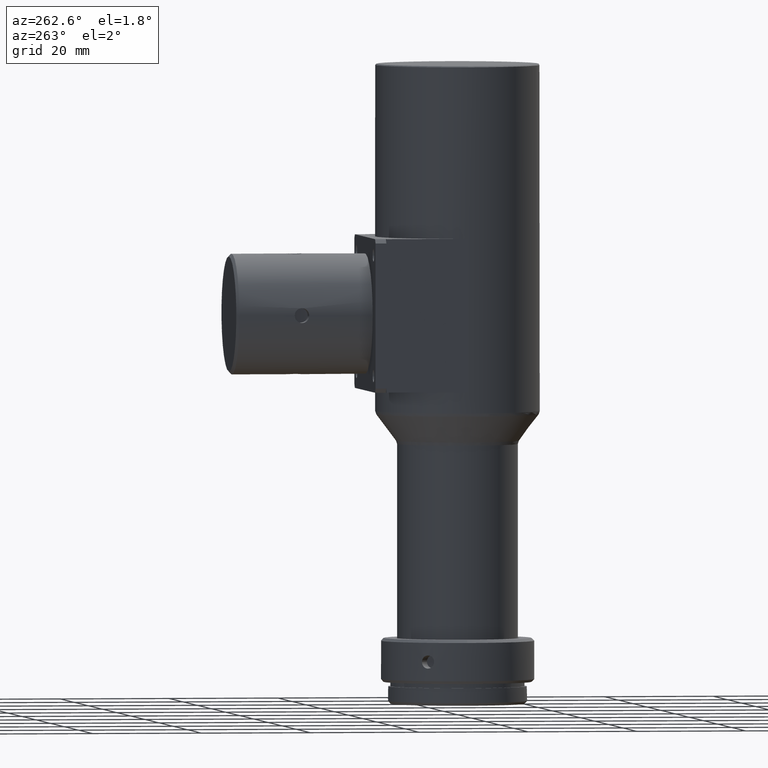
[diagram: clean part render]
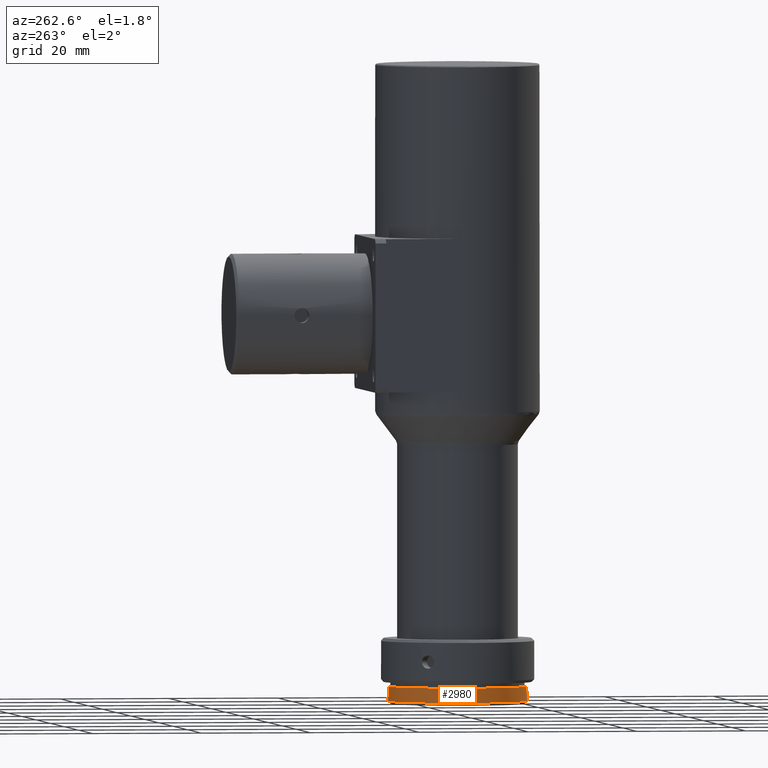
[diagram: same view with one face highlighted and labeled with its STEP entity id]
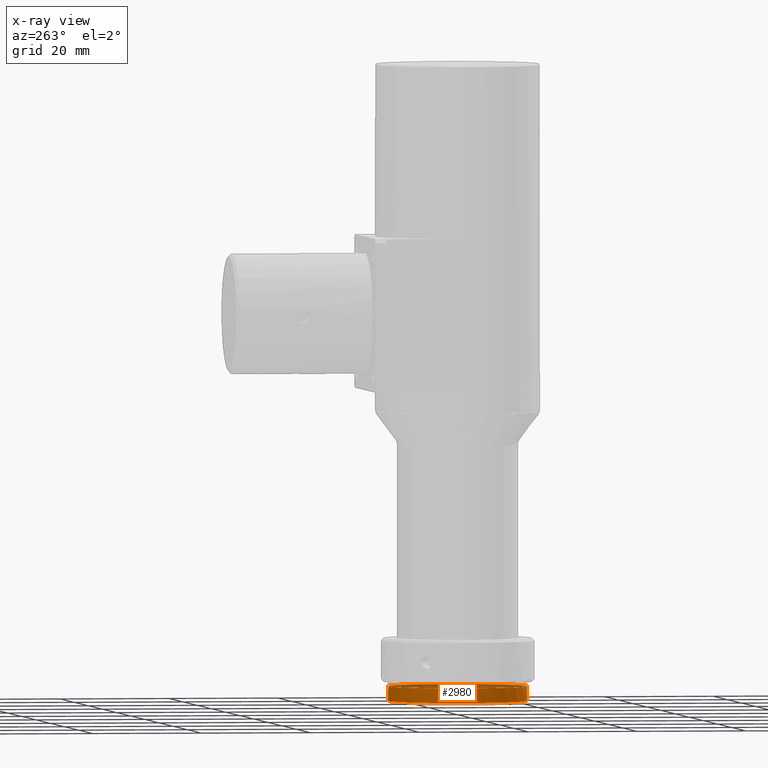
[diagram: x-ray of the same camera — body ghosted, the highlighted face saturated]
A machine part, auxiliary view. The second image highlights one B-rep face of the part: STEP entity #2980.
The next image is the same camera in x-ray: the body ghosted, the highlighted face saturated — about 17% of this face is hidden behind the body in this view.
In plain terms, the highlighted cylindrical surface (bore or boss wall) has radius 12.7 mm, axis along (-0, -0, -1).
Its self-contained STEP definition (entity closure, byte-faithful):
#87 = EDGE_CURVE ( 'NONE', #3873, #3873, #1095, .T. ) ;
#354 = DIRECTION ( 'NONE',  ( -5.184486260647288420E-17, -1.526556658859590243E-16, -1.000000000000000000 ) ) ;
#395 = DIRECTION ( 'NONE',  ( 0.000000000000000000, 1.000000000000000000, 0.000000000000000000 ) ) ;
#499 = AXIS2_PLACEMENT_3D ( 'NONE', #2407, #3630, #764 ) ;
#764 = DIRECTION ( 'NONE',  ( 0.000000000000000000, 1.000000000000000000, 0.000000000000000000 ) ) ;
#980 = CARTESIAN_POINT ( 'NONE',  ( 1.659035603407136041E-16, 6.053650587437824302E-07, -176.4645019999999818 ) ) ;
#1089 = DIRECTION ( 'NONE',  ( 0.000000000000000000, 1.000000000000000000, 0.000000000000000000 ) ) ;
#1095 = CIRCLE ( 'NONE', #1493, 12.69999999999999929 ) ;
#1202 = VERTEX_POINT ( 'NONE', #2452 ) ;
#1493 = AXIS2_PLACEMENT_3D ( 'NONE', #2608, #2628, #1089 ) ;
#2042 = FACE_OUTER_BOUND ( 'NONE', #2198, .T. ) ;
#2046 = CARTESIAN_POINT ( 'NONE',  ( 2.592243130323649757E-17, 12.70000060536505870, -179.1645019999999988 ) ) ;
#2085 = CYLINDRICAL_SURFACE ( 'NONE', #499, 12.69999999999999929 ) ;
#2164 = EDGE_LOOP ( 'NONE', ( #3944 ) ) ;
#2193 = AXIS2_PLACEMENT_3D ( 'NONE', #980, #354, #395 ) ;
#2198 = EDGE_LOOP ( 'NONE', ( #2615 ) ) ;
#2407 = CARTESIAN_POINT ( 'NONE',  ( 0.000000000000000000, 6.053650582552843417E-07, -179.6645019999999988 ) ) ;
#2452 = CARTESIAN_POINT ( 'NONE',  ( 1.659035603407136041E-16, 12.70000060536505870, -176.4645019999999818 ) ) ;
#2499 = EDGE_CURVE ( 'NONE', #1202, #1202, #3950, .T. ) ;
#2608 = CARTESIAN_POINT ( 'NONE',  ( 2.592243130323649757E-17, 6.053650583316122805E-07, -179.1645019999999988 ) ) ;
#2615 = ORIENTED_EDGE ( 'NONE', *, *, #87, .T. ) ;
#2628 = DIRECTION ( 'NONE',  ( 5.184486260647288420E-17, 1.526556658859590243E-16, 1.000000000000000000 ) ) ;
#2980 = ADVANCED_FACE ( 'NONE', ( #2042, #3283 ), #2085, .T. ) ;
#3283 = FACE_OUTER_BOUND ( 'NONE', #2164, .T. ) ;
#3630 = DIRECTION ( 'NONE',  ( -5.184486260647288420E-17, -1.526556658859590243E-16, -1.000000000000000000 ) ) ;
#3873 = VERTEX_POINT ( 'NONE', #2046 ) ;
#3944 = ORIENTED_EDGE ( 'NONE', *, *, #2499, .T. ) ;
#3950 = CIRCLE ( 'NONE', #2193, 12.69999999999999929 ) ;